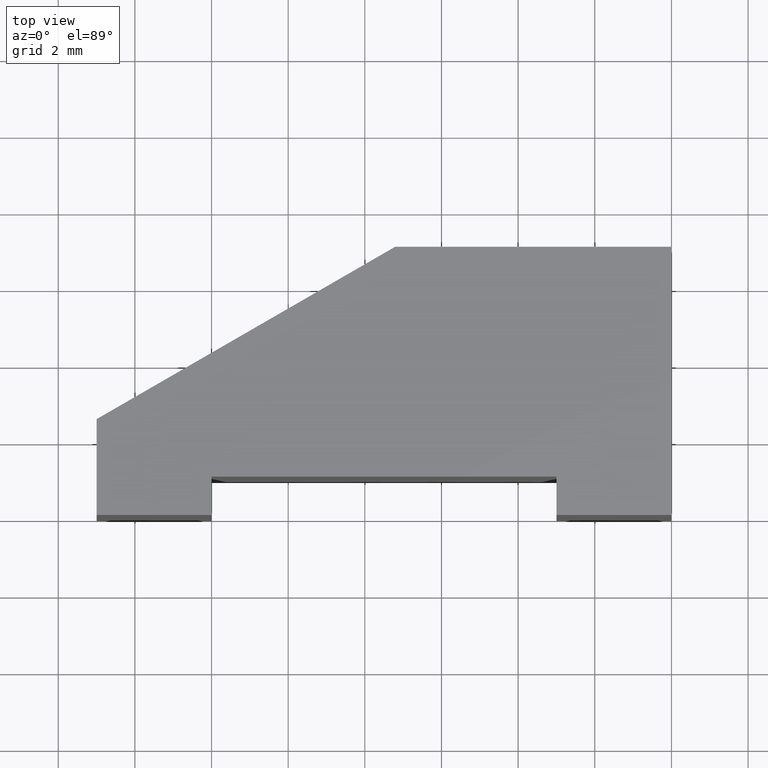
[diagram: clean part render]
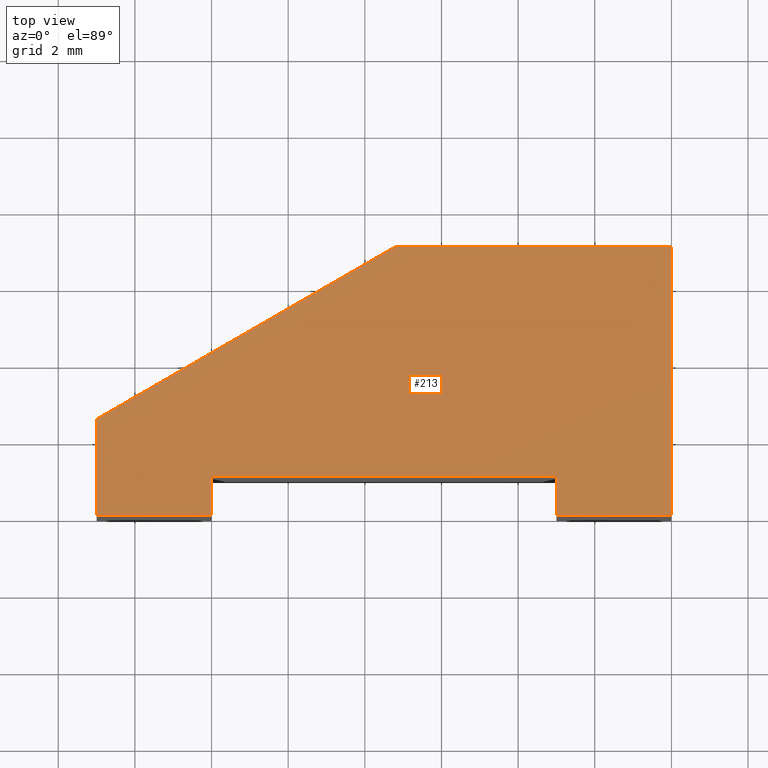
[diagram: same view with one face highlighted and labeled with its STEP entity id]
A machine part, top view. The second image highlights one B-rep face of the part: STEP entity #213.
In plain terms, the highlighted planar face has unit normal (0, 0, 1).
Its self-contained STEP definition (entity closure, byte-faithful):
#24=FACE_OUTER_BOUND('',#35,.T.);
#35=EDGE_LOOP('',(#180,#181,#182,#183,#184,#185,#186,#187,#188));
#36=LINE('',#303,#63);
#40=LINE('',#311,#67);
#43=LINE('',#317,#70);
#46=LINE('',#323,#73);
#49=LINE('',#329,#76);
#52=LINE('',#335,#79);
#55=LINE('',#341,#82);
#58=LINE('',#347,#85);
#61=LINE('',#352,#88);
#63=VECTOR('',#252,10.);
#67=VECTOR('',#258,10.);
#70=VECTOR('',#263,10.);
#73=VECTOR('',#268,10.);
#76=VECTOR('',#273,10.);
#79=VECTOR('',#278,10.);
#82=VECTOR('',#283,10.);
#85=VECTOR('',#288,10.);
#88=VECTOR('',#293,10.);
#90=VERTEX_POINT('',#301);
#91=VERTEX_POINT('',#302);
#94=VERTEX_POINT('',#310);
#96=VERTEX_POINT('',#316);
#98=VERTEX_POINT('',#322);
#100=VERTEX_POINT('',#328);
#102=VERTEX_POINT('',#334);
#104=VERTEX_POINT('',#340);
#106=VERTEX_POINT('',#346);
#108=EDGE_CURVE('',#90,#91,#36,.T.);
#112=EDGE_CURVE('',#91,#94,#40,.T.);
#115=EDGE_CURVE('',#94,#96,#43,.T.);
#118=EDGE_CURVE('',#96,#98,#46,.T.);
#121=EDGE_CURVE('',#98,#100,#49,.T.);
#124=EDGE_CURVE('',#100,#102,#52,.T.);
#127=EDGE_CURVE('',#102,#104,#55,.T.);
#130=EDGE_CURVE('',#104,#106,#58,.T.);
#133=EDGE_CURVE('',#106,#90,#61,.T.);
#180=ORIENTED_EDGE('',*,*,#108,.F.);
#181=ORIENTED_EDGE('',*,*,#133,.F.);
#182=ORIENTED_EDGE('',*,*,#130,.F.);
#183=ORIENTED_EDGE('',*,*,#127,.F.);
#184=ORIENTED_EDGE('',*,*,#124,.F.);
#185=ORIENTED_EDGE('',*,*,#121,.F.);
#186=ORIENTED_EDGE('',*,*,#118,.F.);
#187=ORIENTED_EDGE('',*,*,#115,.F.);
#188=ORIENTED_EDGE('',*,*,#112,.F.);
#199=PLANE('',#247);
#213=ADVANCED_FACE('',(#24),#199,.T.);
#247=AXIS2_PLACEMENT_3D('',#355,#297,#298);
#252=DIRECTION('',(-1.,1.85037170770859E-16,0.));
#258=DIRECTION('',(1.11022302462516E-15,1.,0.));
#263=DIRECTION('',(-1.,1.2335811384724E-16,0.));
#268=DIRECTION('',(-2.22044604925031E-15,-1.,0.));
#273=DIRECTION('',(-1.,1.8503717077086E-16,0.));
#278=DIRECTION('',(0.,1.,0.));
#283=DIRECTION('',(0.866025403784439,0.5,0.));
#288=DIRECTION('',(1.,-1.54074139775363E-16,0.));
#293=DIRECTION('',(-1.58603289232165E-16,-1.,0.));
#297=DIRECTION('center_axis',(0.,0.,1.));
#298=DIRECTION('ref_axis',(1.,0.,0.));
#301=CARTESIAN_POINT('',(0.,0.,9.5));
#302=CARTESIAN_POINT('',(-3.,5.55111512312578E-16,9.5));
#303=CARTESIAN_POINT('',(-3.,5.55111512312578E-16,9.5));
#310=CARTESIAN_POINT('',(-3.,1.,9.5));
#311=CARTESIAN_POINT('',(-3.,1.,9.5));
#316=CARTESIAN_POINT('',(-12.,1.,9.5));
#317=CARTESIAN_POINT('',(-12.,1.,9.5));
#322=CARTESIAN_POINT('',(-12.,2.22044604925031E-15,9.5));
#323=CARTESIAN_POINT('',(-12.,2.22044604925031E-15,9.5));
#328=CARTESIAN_POINT('',(-15.,2.77555756156289E-15,9.5));
#329=CARTESIAN_POINT('',(-15.,2.77555756156289E-15,9.5));
#334=CARTESIAN_POINT('',(-15.,2.5,9.5));
#335=CARTESIAN_POINT('',(-15.,2.5,9.5));
#340=CARTESIAN_POINT('',(-7.20577136594005,7.,9.5));
#341=CARTESIAN_POINT('',(-7.20577136594005,7.,9.5));
#346=CARTESIAN_POINT('',(1.11022302462516E-15,7.,9.5));
#347=CARTESIAN_POINT('',(1.11022302462516E-15,7.,9.5));
#352=CARTESIAN_POINT('',(0.,0.,9.5));
#355=CARTESIAN_POINT('Origin',(-6.81143396622565,3.06317847395006,9.5));